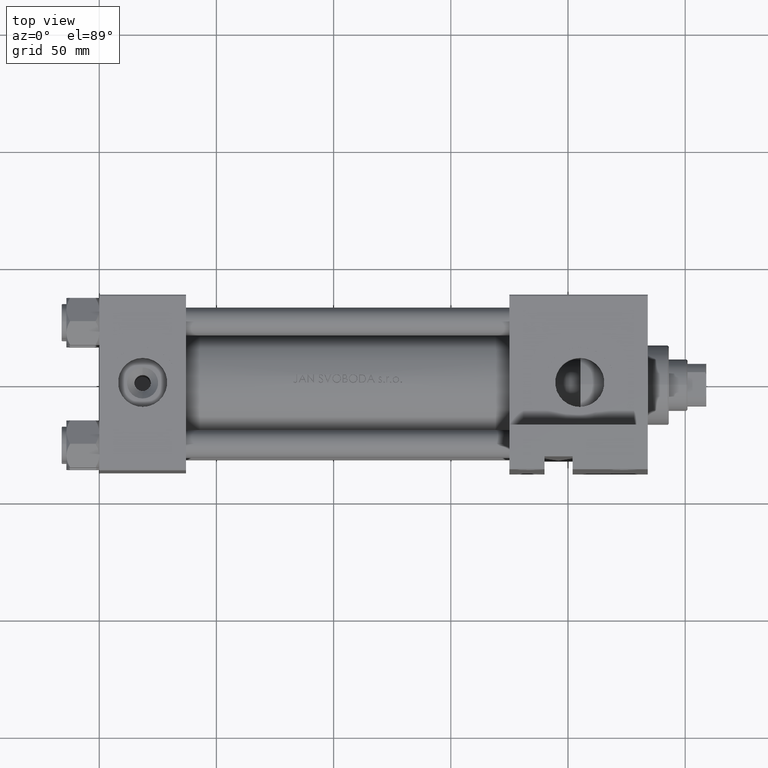
[diagram: clean part render]
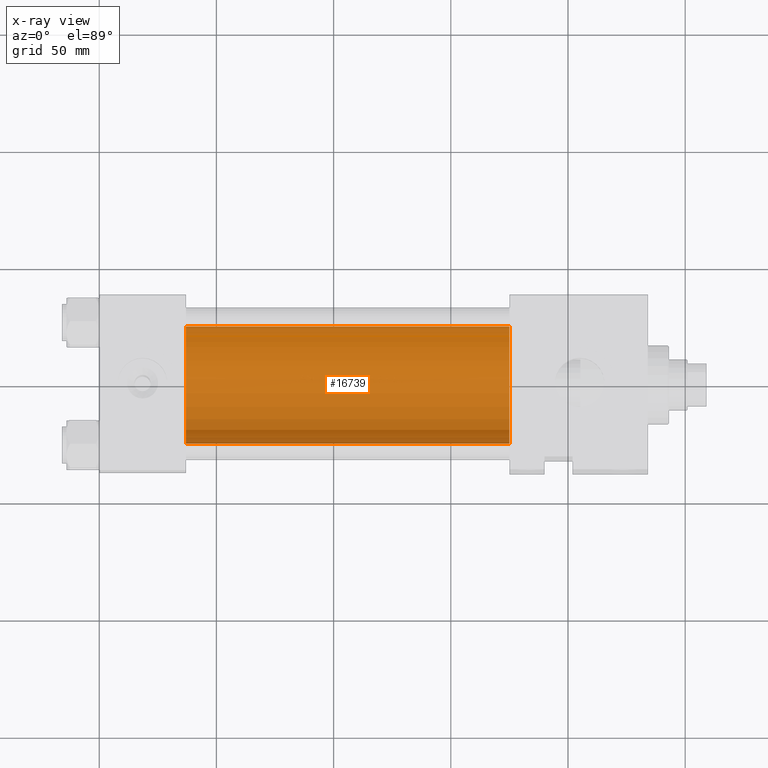
[diagram: x-ray — body ghosted, one internal face saturated and labeled with its STEP entity id]
A machine part, top view, then the same camera in x-ray: the body is ghosted and one INTERNAL B-rep face — a face not visible from any outside direction — is saturated and labeled: STEP entity #16739.
In plain terms, the highlighted cylindrical surface (partial cylindrical patch) has radius 25 mm, axis along (-1, -0, 0).
Its self-contained STEP definition (entity closure, byte-faithful):
#1283 = LINE ( 'NONE', #20381, #41680 ) ;
#4039 = CARTESIAN_POINT ( 'NONE',  ( 175.0000000000000284, 3.122849337825750617E-15, -25.50000000000000355 ) ) ;
#4907 = CARTESIAN_POINT ( 'NONE',  ( 37.00000000000000000, 6.123233995736772199E-17, 24.50000000000000000 ) ) ;
#9258 = EDGE_CURVE ( 'NONE', #37936, #27364, #13979, .T. ) ;
#11652 = DIRECTION ( 'NONE',  ( -1.000000000000000000, -0.000000000000000000, -0.000000000000000000 ) ) ;
#13189 = AXIS2_PLACEMENT_3D ( 'NONE', #17235, #36367, #36115 ) ;
#13979 = CIRCLE ( 'NONE', #13189, 25.00000000000000000 ) ;
#15345 = LINE ( 'NONE', #29745, #43831 ) ;
#15360 = AXIS2_PLACEMENT_3D ( 'NONE', #39581, #25016, #32543 ) ;
#15922 = DIRECTION ( 'NONE',  ( 0.000000000000000000, 0.000000000000000000, 1.000000000000000000 ) ) ;
#16179 = CYLINDRICAL_SURFACE ( 'NONE', #20520, 25.00000000000000000 ) ;
#16739 = ADVANCED_FACE ( 'NONE', ( #39063 ), #16179, .F. ) ;
#17235 = CARTESIAN_POINT ( 'NONE',  ( 175.0000000000000284, 6.123233995736772199E-17, -0.5000000000000004441 ) ) ;
#18988 = ORIENTED_EDGE ( 'NONE', *, *, #28668, .T. ) ;
#19983 = VERTEX_POINT ( 'NONE', #24289 ) ;
#20202 = CIRCLE ( 'NONE', #15360, 25.00000000000000000 ) ;
#20381 = CARTESIAN_POINT ( 'NONE',  ( 175.0000000000000284, 3.122849337825750617E-15, -25.50000000000000355 ) ) ;
#20520 = AXIS2_PLACEMENT_3D ( 'NONE', #31301, #11652, #15922 ) ;
#21605 = ORIENTED_EDGE ( 'NONE', *, *, #35364, .F. ) ;
#23665 = DIRECTION ( 'NONE',  ( -1.000000000000000000, -0.000000000000000000, -0.000000000000000000 ) ) ;
#24128 = EDGE_LOOP ( 'NONE', ( #21605, #44429, #18988, #27125 ) ) ;
#24289 = CARTESIAN_POINT ( 'NONE',  ( 37.00000000000000000, 3.122849337825750617E-15, -25.50000000000000355 ) ) ;
#25016 = DIRECTION ( 'NONE',  ( 1.000000000000000000, 0.000000000000000000, 0.000000000000000000 ) ) ;
#27125 = ORIENTED_EDGE ( 'NONE', *, *, #45114, .F. ) ;
#27364 = VERTEX_POINT ( 'NONE', #28060 ) ;
#28060 = CARTESIAN_POINT ( 'NONE',  ( 175.0000000000000284, 6.123233995736772199E-17, 24.50000000000000000 ) ) ;
#28668 = EDGE_CURVE ( 'NONE', #27364, #31577, #15345, .T. ) ;
#29745 = CARTESIAN_POINT ( 'NONE',  ( 175.0000000000000284, 6.123233995736772199E-17, 24.50000000000000000 ) ) ;
#30230 = DIRECTION ( 'NONE',  ( -1.000000000000000000, -0.000000000000000000, -0.000000000000000000 ) ) ;
#31301 = CARTESIAN_POINT ( 'NONE',  ( 175.0000000000000284, 6.123233995736772199E-17, -0.5000000000000004441 ) ) ;
#31577 = VERTEX_POINT ( 'NONE', #4907 ) ;
#32543 = DIRECTION ( 'NONE',  ( 0.000000000000000000, 0.000000000000000000, -1.000000000000000000 ) ) ;
#35364 = EDGE_CURVE ( 'NONE', #37936, #19983, #1283, .T. ) ;
#36115 = DIRECTION ( 'NONE',  ( 0.000000000000000000, 0.000000000000000000, -1.000000000000000000 ) ) ;
#36367 = DIRECTION ( 'NONE',  ( 1.000000000000000000, 0.000000000000000000, 0.000000000000000000 ) ) ;
#37936 = VERTEX_POINT ( 'NONE', #4039 ) ;
#39063 = FACE_OUTER_BOUND ( 'NONE', #24128, .T. ) ;
#39581 = CARTESIAN_POINT ( 'NONE',  ( 37.00000000000000000, 6.123233995736772199E-17, -0.5000000000000004441 ) ) ;
#41680 = VECTOR ( 'NONE', #23665, 1000.000000000000000 ) ;
#43831 = VECTOR ( 'NONE', #30230, 1000.000000000000000 ) ;
#44429 = ORIENTED_EDGE ( 'NONE', *, *, #9258, .T. ) ;
#45114 = EDGE_CURVE ( 'NONE', #19983, #31577, #20202, .T. ) ;